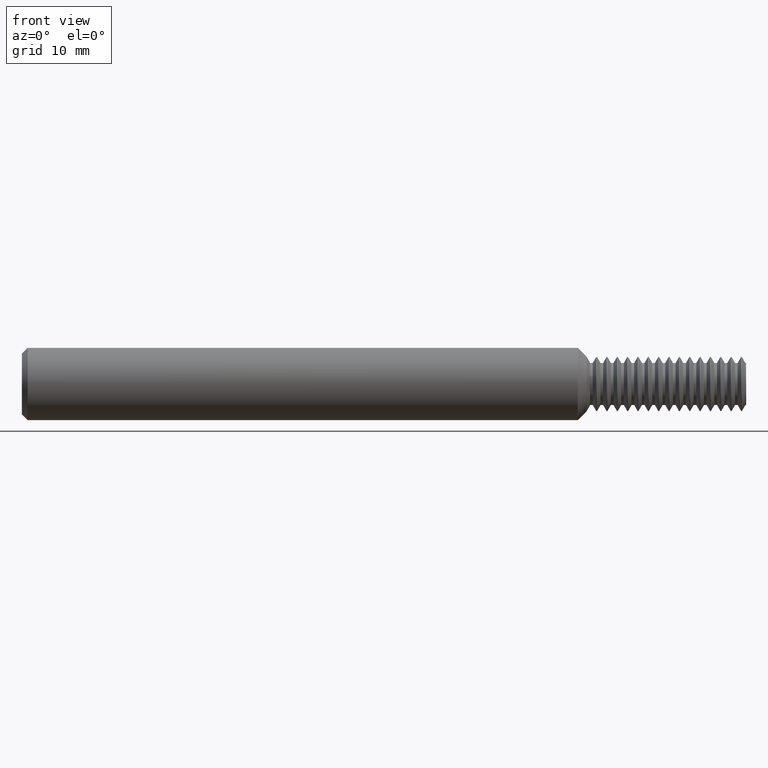
[diagram: clean part render]
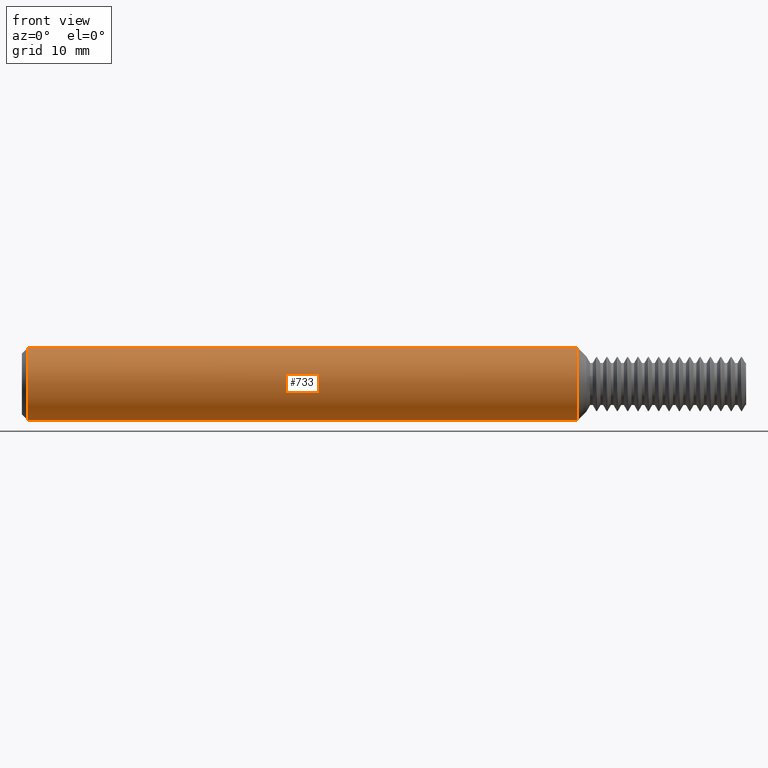
[diagram: same view with one face highlighted and labeled with its STEP entity id]
A machine part, front view. The second image highlights one B-rep face of the part: STEP entity #733.
In plain terms, the highlighted cylindrical surface (edge-blend (fillet) strip) has radius 3.1712 mm, axis along (-1, -0, -0).
Its self-contained STEP definition (entity closure, byte-faithful):
#119 = EDGE_CURVE ( 'NONE', #1899, #544, #2877, .T. ) ;
#175 = LINE ( 'NONE', #3350, #1845 ) ;
#268 = CARTESIAN_POINT ( 'NONE',  ( 0.02000000000000005940, 0.000000000000000000, 0.000000000000000000 ) ) ;
#327 = VERTEX_POINT ( 'NONE', #2995 ) ;
#544 = VERTEX_POINT ( 'NONE', #1753 ) ;
#733 = ADVANCED_FACE ( 'NONE', ( #2575 ), #2345, .T. ) ;
#752 = DIRECTION ( 'NONE',  ( -1.000000000000000000, -0.000000000000000000, -0.000000000000000000 ) ) ;
#802 = AXIS2_PLACEMENT_3D ( 'NONE', #268, #2316, #2652 ) ;
#1074 = DIRECTION ( 'NONE',  ( -1.000000000000000000, -0.000000000000000000, -0.000000000000000000 ) ) ;
#1217 = DIRECTION ( 'NONE',  ( -1.000000000000000000, -0.000000000000000000, -0.000000000000000000 ) ) ;
#1243 = ORIENTED_EDGE ( 'NONE', *, *, #1648, .F. ) ;
#1356 = ORIENTED_EDGE ( 'NONE', *, *, #1962, .T. ) ;
#1358 = LINE ( 'NONE', #2116, #1685 ) ;
#1364 = ORIENTED_EDGE ( 'NONE', *, *, #2669, .T. ) ;
#1414 = CARTESIAN_POINT ( 'NONE',  ( 0.02000000000000005940, 1.528971528735470422E-17, 0.1248500000000000026 ) ) ;
#1648 = EDGE_CURVE ( 'NONE', #1899, #327, #175, .T. ) ;
#1685 = VECTOR ( 'NONE', #1074, 39.37007874015748143 ) ;
#1753 = CARTESIAN_POINT ( 'NONE',  ( 1.918650000000000411, 0.000000000000000000, 0.1248500000000000026 ) ) ;
#1845 = VECTOR ( 'NONE', #752, 39.37007874015748143 ) ;
#1899 = VERTEX_POINT ( 'NONE', #2346 ) ;
#1958 = ORIENTED_EDGE ( 'NONE', *, *, #119, .T. ) ;
#1962 = EDGE_CURVE ( 'NONE', #544, #3097, #1358, .T. ) ;
#2028 = CARTESIAN_POINT ( 'NONE',  ( 1.918650000000000411, 0.000000000000000000, 0.000000000000000000 ) ) ;
#2085 = EDGE_LOOP ( 'NONE', ( #1243, #1958, #1356, #1364 ) ) ;
#2116 = CARTESIAN_POINT ( 'NONE',  ( 0.000000000000000000, 0.000000000000000000, 0.1248500000000000026 ) ) ;
#2123 = CIRCLE ( 'NONE', #802, 0.1248500000000000026 ) ;
#2277 = AXIS2_PLACEMENT_3D ( 'NONE', #3128, #3404, #2405 ) ;
#2316 = DIRECTION ( 'NONE',  ( 1.000000000000000000, 0.000000000000000000, 0.000000000000000000 ) ) ;
#2345 = CYLINDRICAL_SURFACE ( 'NONE', #2277, 0.1248500000000000026 ) ;
#2346 = CARTESIAN_POINT ( 'NONE',  ( 1.918650000000000411, 1.528971528735470422E-17, -0.1248500000000000026 ) ) ;
#2370 = AXIS2_PLACEMENT_3D ( 'NONE', #2028, #1217, #3288 ) ;
#2405 = DIRECTION ( 'NONE',  ( 0.000000000000000000, 0.000000000000000000, 1.000000000000000000 ) ) ;
#2575 = FACE_OUTER_BOUND ( 'NONE', #2085, .T. ) ;
#2652 = DIRECTION ( 'NONE',  ( 0.000000000000000000, 0.000000000000000000, -1.000000000000000000 ) ) ;
#2669 = EDGE_CURVE ( 'NONE', #3097, #327, #2123, .T. ) ;
#2877 = CIRCLE ( 'NONE', #2370, 0.1248500000000000026 ) ;
#2995 = CARTESIAN_POINT ( 'NONE',  ( 0.02000000000000005940, 0.000000000000000000, -0.1248500000000000026 ) ) ;
#3097 = VERTEX_POINT ( 'NONE', #1414 ) ;
#3128 = CARTESIAN_POINT ( 'NONE',  ( 0.000000000000000000, 0.000000000000000000, 0.000000000000000000 ) ) ;
#3288 = DIRECTION ( 'NONE',  ( 0.000000000000000000, 0.000000000000000000, 1.000000000000000000 ) ) ;
#3350 = CARTESIAN_POINT ( 'NONE',  ( 0.000000000000000000, 1.528971528735470422E-17, -0.1248500000000000026 ) ) ;
#3404 = DIRECTION ( 'NONE',  ( -1.000000000000000000, -0.000000000000000000, -0.000000000000000000 ) ) ;